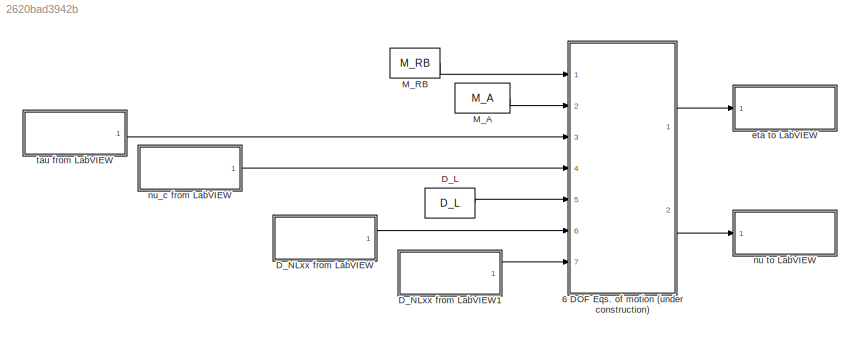
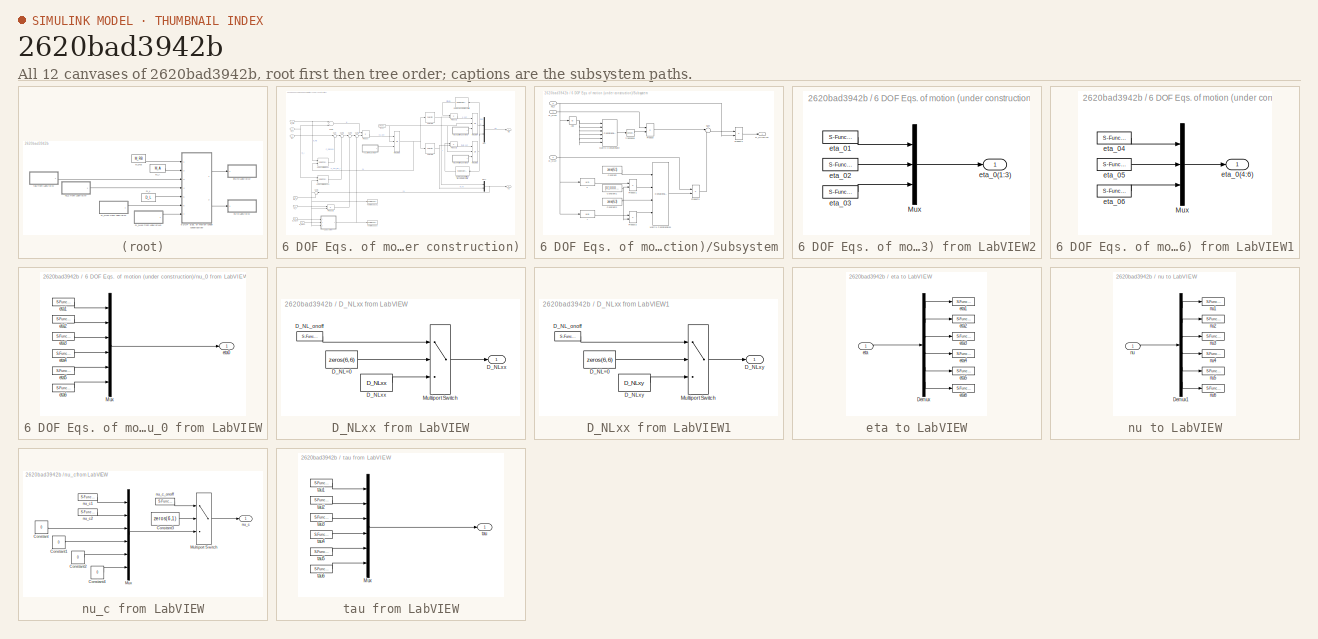
[diagram: thumbnail index - all 12 canvases of the model, root first then tree order]
MODEL slx_2620bad3942b
KIND model
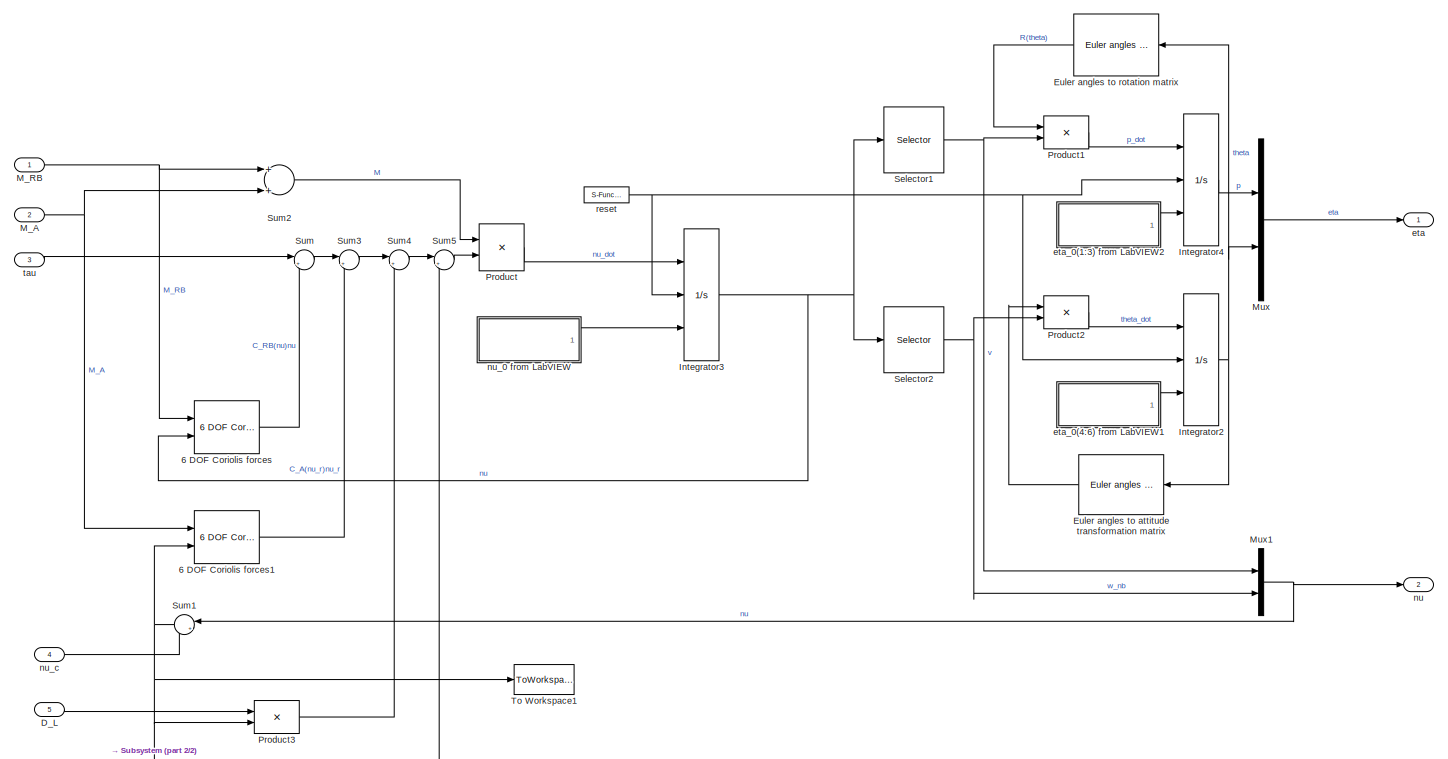
[diagram: 6 DOF Eqs. of motion (under construction) - part 1/2, most of the canvas]
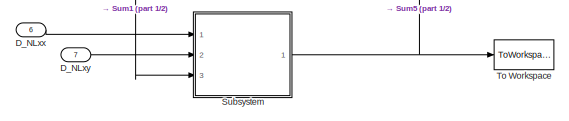
[diagram: 6 DOF Eqs. of motion (under construction) - part 2/2, bottom left region]
BLOCK [SubSystem] 6 DOF Eqs. of motion (under construction)
  Ports = [7, 2]
  RequestExecContextInheritance = off
BLOCK [Reference] 6 DOF Eqs. of motion (under construction)/6 DOF Coriolis forces  REF=marine_gnc/Models/ Kinetics /Support/6 DOF Coriolis forces  (lib defined in mdl_10d96c221ba8, mdl_45f1105420c6)
  Ports = [2, 1]
  SourceBlock = marine_gnc/Models/ Kinetics /Support/6 DOF Coriolis forces
  SourceType = SubSystem
BLOCK [Reference] 6 DOF Eqs. of motion (under construction)/6 DOF Coriolis forces1  REF=marine_gnc/Models/ Kinetics /Support/6 DOF Coriolis forces  (lib defined in mdl_10d96c221ba8, mdl_45f1105420c6)
  Ports = [2, 1]
  SourceBlock = marine_gnc/Models/ Kinetics /Support/6 DOF Coriolis forces
  SourceType = SubSystem
BLOCK [Inport] 6 DOF Eqs. of motion (under construction)/D_L
  IconDisplay = Port number
  Port = 5
BLOCK [Inport] 6 DOF Eqs. of motion (under construction)/D_NLxx
  IconDisplay = Port number
  Port = 6
BLOCK [Inport] 6 DOF Eqs. of motion (under construction)/D_NLxy
  IconDisplay = Port number
  Port = 7
BLOCK [Reference] 6 DOF Eqs. of motion (under construction)/Euler angles to attitude transformation matrix  REF=marine_gnc/Models/ Kinematics/Euler angles to attitude  (lib defined in mdl_10d96c221ba8, mdl_45f1105420c6)
transformation matrix
  Ports = [1, 1]
  SourceBlock = marine_gnc/Models/ Kinematics/Euler angles to attitude\ntransformation matrix
  SourceType = Euler2T
BLOCK [Reference] 6 DOF Eqs. of motion (under construction)/Euler angles to rotation matrix  REF=marine_gnc/Models/ Kinematics/Euler angles to  (lib defined in mdl_10d96c221ba8, mdl_45f1105420c6)
rotation matrix
  Ports = [1, 1]
  SourceBlock = marine_gnc/Models/ Kinematics/Euler angles to\nrotation matrix
  SourceType = Euler2R
BLOCK [Integrator] 6 DOF Eqs. of motion (under construction)/Integrator2
  ExternalReset = level
  InitialConditionSource = external
  Ports = [3, 1]
BLOCK [Integrator] 6 DOF Eqs. of motion (under construction)/Integrator3
  ExternalReset = level
  InitialConditionSource = external
  Ports = [3, 1]
BLOCK [Integrator] 6 DOF Eqs. of motion (under construction)/Integrator4
  ExternalReset = level
  InitialConditionSource = external
  Ports = [3, 1]
BLOCK [Inport] 6 DOF Eqs. of motion (under construction)/M_A
  IconDisplay = Port number
  Port = 2
BLOCK [Inport] 6 DOF Eqs. of motion (under construction)/M_RB
  IconDisplay = Port number
BLOCK [Mux] 6 DOF Eqs. of motion (under construction)/Mux
  DisplayOption = bar
  Inputs = 2
  Ports = [2, 1]
BLOCK [Mux] 6 DOF Eqs. of motion (under construction)/Mux1
  DisplayOption = bar
  Inputs = 2
  Ports = [2, 1]
BLOCK [Product] 6 DOF Eqs. of motion (under construction)/Product
  InputSameDT = off
  Inputs = /*
  Multiplication = Matrix(*)
  Ports = [2, 1]
  RndMeth = Floor
BLOCK [Product] 6 DOF Eqs. of motion (under construction)/Product1
  InputSameDT = off
  Inputs = **
  Multiplication = Matrix(*)
  Ports = [2, 1]
  RndMeth = Floor
BLOCK [Product] 6 DOF Eqs. of motion (under construction)/Product2
  InputSameDT = off
  Inputs = **
  Multiplication = Matrix(*)
  Ports = [2, 1]
  RndMeth = Floor
BLOCK [Product] 6 DOF Eqs. of motion (under construction)/Product3
  InputSameDT = off
  Inputs = **
  Multiplication = Matrix(*)
  Ports = [2, 1]
  RndMeth = Floor
BLOCK [Selector] 6 DOF Eqs. of motion (under construction)/Selector1
  Indices = [1 2 3]
  InputPortWidth = 6
  Ports = [1, 1]
BLOCK [Selector] 6 DOF Eqs. of motion (under construction)/Selector2
  Indices = [4 5 6]
  InputPortWidth = 6
  Ports = [1, 1]
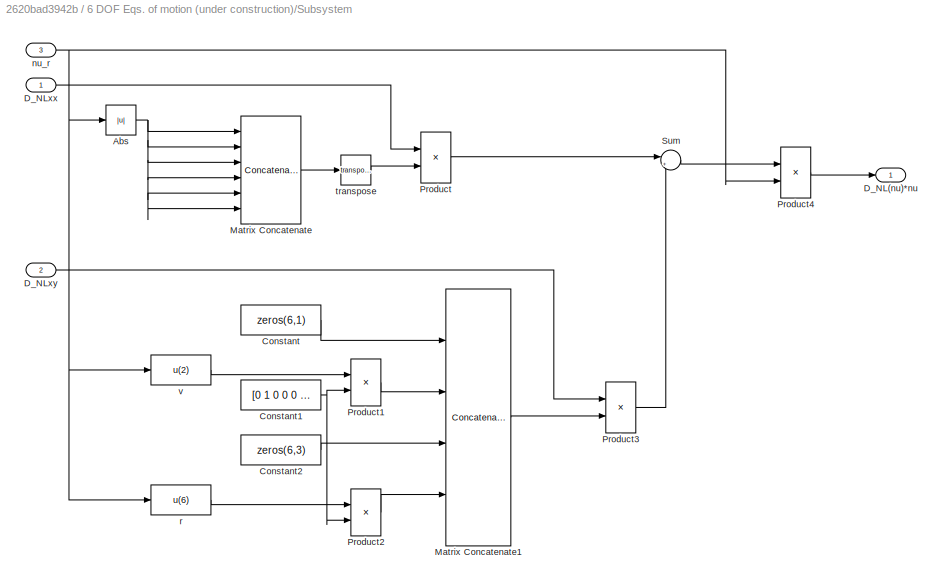
BLOCK [SubSystem] 6 DOF Eqs. of motion (under construction)/Subsystem
  Ports = [3, 1]
  RequestExecContextInheritance = off
BLOCK [Abs] 6 DOF Eqs. of motion (under construction)/Subsystem/Abs
  SaturateOnIntegerOverflow = off
BLOCK [Constant] 6 DOF Eqs. of motion (under construction)/Subsystem/Constant
  Value = zeros(6,1)
BLOCK [Constant] 6 DOF Eqs. of motion (under construction)/Subsystem/Constant1
  Value = [0 1 0 0 0 1]
BLOCK [Constant] 6 DOF Eqs. of motion (under construction)/Subsystem/Constant2
  Value = zeros(6,3)
BLOCK [Outport] 6 DOF Eqs. of motion (under construction)/Subsystem/D_NL(nu)*nu
  IconDisplay = Port number
BLOCK [Inport] 6 DOF Eqs. of motion (under construction)/Subsystem/D_NLxx
  IconDisplay = Port number
BLOCK [Inport] 6 DOF Eqs. of motion (under construction)/Subsystem/D_NLxy
  IconDisplay = Port number
  Port = 2
BLOCK [Concatenate] 6 DOF Eqs. of motion (under construction)/Subsystem/Matrix Concatenate
  ConcatenateDimension = 2
  Mode = Multidimensional array
  NumInputs = 6
  Ports = [6, 1]
BLOCK [Concatenate] 6 DOF Eqs. of motion (under construction)/Subsystem/Matrix Concatenate1
  ConcatenateDimension = 2
  Mode = Multidimensional array
  NumInputs = 4
  Ports = [4, 1]
BLOCK [Product] 6 DOF Eqs. of motion (under construction)/Subsystem/Product
  InputSameDT = off
  OutDataTypeStr = Inherit: Inherit via internal rule
  Ports = [2, 1]
  RndMeth = Floor
  SaturateOnIntegerOverflow = off
BLOCK [Product] 6 DOF Eqs. of motion (under construction)/Subsystem/Product1
  InputSameDT = off
  OutDataTypeStr = Inherit: Inherit via internal rule
  Ports = [2, 1]
  RndMeth = Floor
  SaturateOnIntegerOverflow = off
BLOCK [Product] 6 DOF Eqs. of motion (under construction)/Subsystem/Product2
  InputSameDT = off
  OutDataTypeStr = Inherit: Inherit via internal rule
  Ports = [2, 1]
  RndMeth = Floor
  SaturateOnIntegerOverflow = off
BLOCK [Product] 6 DOF Eqs. of motion (under construction)/Subsystem/Product3
  InputSameDT = off
  OutDataTypeStr = Inherit: Inherit via internal rule
  Ports = [2, 1]
  RndMeth = Floor
  SaturateOnIntegerOverflow = off
BLOCK [Product] 6 DOF Eqs. of motion (under construction)/Subsystem/Product4
  InputSameDT = off
  Multiplication = Matrix(*)
  OutDataTypeStr = Inherit: Inherit via internal rule
  Ports = [2, 1]
  RndMeth = Floor
  SaturateOnIntegerOverflow = off
BLOCK [Sum] 6 DOF Eqs. of motion (under construction)/Subsystem/Sum
  IconShape = round
  InputSameDT = off
  Inputs = |++
  OutDataTypeStr = Inherit: Inherit via internal rule
  Ports = [2, 1]
  SaturateOnIntegerOverflow = off
BLOCK [Inport] 6 DOF Eqs. of motion (under construction)/Subsystem/nu_r
  IconDisplay = Port number
  Port = 3
BLOCK [Fcn] 6 DOF Eqs. of motion (under construction)/Subsystem/r
  Expr = u(6)
BLOCK [Math] 6 DOF Eqs. of motion (under construction)/Subsystem/transpose
  Operator = transpose
  Ports = [1, 1]
BLOCK [Fcn] 6 DOF Eqs. of motion (under construction)/Subsystem/v
  Expr = u(2)
BLOCK [Sum] 6 DOF Eqs. of motion (under construction)/Sum
  IconShape = round
  InputSameDT = off
  Inputs = |+-
  OutDataTypeStr = Inherit: Inherit via internal rule
  Ports = [2, 1]
BLOCK [Sum] 6 DOF Eqs. of motion (under construction)/Sum1
  IconShape = round
  InputSameDT = off
  Inputs = |+-
  OutDataTypeStr = Inherit: Inherit via internal rule
  Ports = [2, 1]
BLOCK [Sum] 6 DOF Eqs. of motion (under construction)/Sum2
  InputSameDT = off
  OutDataTypeStr = Inherit: Inherit via internal rule
  Ports = [2, 1]
BLOCK [Sum] 6 DOF Eqs. of motion (under construction)/Sum3
  IconShape = round
  InputSameDT = off
  Inputs = |+-
  OutDataTypeStr = Inherit: Inherit via internal rule
  Ports = [2, 1]
BLOCK [Sum] 6 DOF Eqs. of motion (under construction)/Sum4
  IconShape = round
  InputSameDT = off
  Inputs = |+-
  OutDataTypeStr = Inherit: Inherit via internal rule
  Ports = [2, 1]
BLOCK [Sum] 6 DOF Eqs. of motion (under construction)/Sum5
  IconShape = round
  InputSameDT = off
  Inputs = |+-
  OutDataTypeStr = Inherit: Inherit via internal rule
  Ports = [2, 1]
BLOCK [ToWorkspace] 6 DOF Eqs. of motion (under construction)/To Workspace
  FixptAsFi = on
  MaxDataPoints = inf
  Ports = [1]
  SampleTime = -1
  Save2DSignal = 3-D array (concatenate along third dimension)
  SaveFormat = Timeseries
  VariableName = simout
BLOCK [ToWorkspace] 6 DOF Eqs. of motion (under construction)/To Workspace1
  FixptAsFi = on
  MaxDataPoints = inf
  Ports = [1]
  SampleTime = -1
  Save2DSignal = 3-D array (concatenate along third dimension)
  SaveFormat = Timeseries
  VariableName = simout2
BLOCK [Outport] 6 DOF Eqs. of motion (under construction)/eta
  IconDisplay = Port number
BLOCK [SubSystem] 6 DOF Eqs. of motion (under construction)/eta_0(1:3) from LabVIEW2
  Ports = [0, 1]
  RequestExecContextInheritance = off
BLOCK [Mux] 6 DOF Eqs. of motion (under construction)/eta_0(1:3) from LabVIEW2/Mux
  DisplayOption = bar
  Inputs = 3
  Ports = [3, 1]
BLOCK [Outport] 6 DOF Eqs. of motion (under construction)/eta_0(1:3) from LabVIEW2/eta_0(1:3)
  IconDisplay = Port number
BLOCK [S-Function] 6 DOF Eqs. of motion (under construction)/eta_0(1:3) from LabVIEW2/eta_01
  CopyFcn = NIVeriStand_MDL_functions('', 'IO_copy');
  DeleteFcn = NIVeriStand_MDL_functions('', 'IO_delete');
  EnableBusSupport = off
  FunctionName = NIVeriStandIO
  MoveFcn = set_param(gcb, 'Mask', 'on');
  Parameters = width dtype portnum stime stype btype
  Ports = [0, 1]
  Priority = 1
BLOCK [S-Function] 6 DOF Eqs. of motion (under construction)/eta_0(1:3) from LabVIEW2/eta_02
  CopyFcn = NIVeriStand_MDL_functions('', 'IO_copy');
  DeleteFcn = NIVeriStand_MDL_functions('', 'IO_delete');
  EnableBusSupport = off
  FunctionName = NIVeriStandIO
  MoveFcn = set_param(gcb, 'Mask', 'on');
  Parameters = width dtype portnum stime stype btype
  Ports = [0, 1]
  Priority = 2
BLOCK [S-Function] 6 DOF Eqs. of motion (under construction)/eta_0(1:3) from LabVIEW2/eta_03
  CopyFcn = NIVeriStand_MDL_functions('', 'IO_copy');
  DeleteFcn = NIVeriStand_MDL_functions('', 'IO_delete');
  EnableBusSupport = off
  FunctionName = NIVeriStandIO
  MoveFcn = set_param(gcb, 'Mask', 'on');
  Parameters = width dtype portnum stime stype btype
  Ports = [0, 1]
  Priority = 3
BLOCK [SubSystem] 6 DOF Eqs. of motion (under construction)/eta_0(4:6) from LabVIEW1
  Ports = [0, 1]
  RequestExecContextInheritance = off
BLOCK [Mux] 6 DOF Eqs. of motion (under construction)/eta_0(4:6) from LabVIEW1/Mux
  DisplayOption = bar
  Inputs = 3
  Ports = [3, 1]
BLOCK [Outport] 6 DOF Eqs. of motion (under construction)/eta_0(4:6) from LabVIEW1/eta_0(4:6)
  IconDisplay = Port number
BLOCK [S-Function] 6 DOF Eqs. of motion (under construction)/eta_0(4:6) from LabVIEW1/eta_04
  CopyFcn = NIVeriStand_MDL_functions('', 'IO_copy');
  DeleteFcn = NIVeriStand_MDL_functions('', 'IO_delete');
  EnableBusSupport = off
  FunctionName = NIVeriStandIO
  MoveFcn = set_param(gcb, 'Mask', 'on');
  Parameters = width dtype portnum stime stype btype
  Ports = [0, 1]
  Priority = 1
BLOCK [S-Function] 6 DOF Eqs. of motion (under construction)/eta_0(4:6) from LabVIEW1/eta_05
  CopyFcn = NIVeriStand_MDL_functions('', 'IO_copy');
  DeleteFcn = NIVeriStand_MDL_functions('', 'IO_delete');
  EnableBusSupport = off
  FunctionName = NIVeriStandIO
  MoveFcn = set_param(gcb, 'Mask', 'on');
  Parameters = width dtype portnum stime stype btype
  Ports = [0, 1]
  Priority = 2
BLOCK [S-Function] 6 DOF Eqs. of motion (under construction)/eta_0(4:6) from LabVIEW1/eta_06
  CopyFcn = NIVeriStand_MDL_functions('', 'IO_copy');
  DeleteFcn = NIVeriStand_MDL_functions('', 'IO_delete');
  EnableBusSupport = off
  FunctionName = NIVeriStandIO
  MoveFcn = set_param(gcb, 'Mask', 'on');
  Parameters = width dtype portnum stime stype btype
  Ports = [0, 1]
  Priority = 3
BLOCK [Outport] 6 DOF Eqs. of motion (under construction)/nu
  IconDisplay = Port number
  Port = 2
BLOCK [SubSystem] 6 DOF Eqs. of motion (under construction)/nu_0 from LabVIEW
  Ports = [0, 1]
  RequestExecContextInheritance = off
BLOCK [Mux] 6 DOF Eqs. of motion (under construction)/nu_0 from LabVIEW/Mux
  DisplayOption = bar
  Inputs = 6
  Ports = [6, 1]
BLOCK [Outport] 6 DOF Eqs. of motion (under construction)/nu_0 from LabVIEW/eta0
  IconDisplay = Port number
BLOCK [S-Function] 6 DOF Eqs. of motion (under construction)/nu_0 from LabVIEW/eta1
  CopyFcn = NIVeriStand_MDL_functions('', 'IO_copy');
  DeleteFcn = NIVeriStand_MDL_functions('', 'IO_delete');
  EnableBusSupport = off
  FunctionName = NIVeriStandIO
  MoveFcn = set_param(gcb, 'Mask', 'on');
  Parameters = width dtype portnum stime stype btype
  Ports = [0, 1]
  Priority = 1
BLOCK [S-Function] 6 DOF Eqs. of motion (under construction)/nu_0 from LabVIEW/eta2
  CopyFcn = NIVeriStand_MDL_functions('', 'IO_copy');
  DeleteFcn = NIVeriStand_MDL_functions('', 'IO_delete');
  EnableBusSupport = off
  FunctionName = NIVeriStandIO
  MoveFcn = set_param(gcb, 'Mask', 'on');
  Parameters = width dtype portnum stime stype btype
  Ports = [0, 1]
  Priority = 2
BLOCK [S-Function] 6 DOF Eqs. of motion (under construction)/nu_0 from LabVIEW/eta3
  CopyFcn = NIVeriStand_MDL_functions('', 'IO_copy');
  DeleteFcn = NIVeriStand_MDL_functions('', 'IO_delete');
  EnableBusSupport = off
  FunctionName = NIVeriStandIO
  MoveFcn = set_param(gcb, 'Mask', 'on');
  Parameters = width dtype portnum stime stype btype
  Ports = [0, 1]
  Priority = 3
BLOCK [S-Function] 6 DOF Eqs. of motion (under construction)/nu_0 from LabVIEW/eta4
  CopyFcn = NIVeriStand_MDL_functions('', 'IO_copy');
  DeleteFcn = NIVeriStand_MDL_functions('', 'IO_delete');
  EnableBusSupport = off
  FunctionName = NIVeriStandIO
  MoveFcn = set_param(gcb, 'Mask', 'on');
  Parameters = width dtype portnum stime stype btype
  Ports = [0, 1]
  Priority = 4
BLOCK [S-Function] 6 DOF Eqs. of motion (under construction)/nu_0 from LabVIEW/eta5
  CopyFcn = NIVeriStand_MDL_functions('', 'IO_copy');
  DeleteFcn = NIVeriStand_MDL_functions('', 'IO_delete');
  EnableBusSupport = off
  FunctionName = NIVeriStandIO
  MoveFcn = set_param(gcb, 'Mask', 'on');
  Parameters = width dtype portnum stime stype btype
  Ports = [0, 1]
  Priority = 5
BLOCK [S-Function] 6 DOF Eqs. of motion (under construction)/nu_0 from LabVIEW/eta6
  CopyFcn = NIVeriStand_MDL_functions('', 'IO_copy');
  DeleteFcn = NIVeriStand_MDL_functions('', 'IO_delete');
  EnableBusSupport = off
  FunctionName = NIVeriStandIO
  MoveFcn = set_param(gcb, 'Mask', 'on');
  Parameters = width dtype portnum stime stype btype
  Ports = [0, 1]
  Priority = 6
BLOCK [Inport] 6 DOF Eqs. of motion (under construction)/nu_c
  IconDisplay = Port number
  Port = 4
BLOCK [S-Function] 6 DOF Eqs. of motion (under construction)/reset
  CopyFcn = NIVeriStand_MDL_functions('', 'IO_copy');
  DeleteFcn = NIVeriStand_MDL_functions('', 'IO_delete');
  EnableBusSupport = off
  FunctionName = NIVeriStandIO
  MoveFcn = set_param(gcb, 'Mask', 'on');
  Parameters = width dtype portnum stime stype btype
  Ports = [0, 1]
  Priority = 1
BLOCK [Inport] 6 DOF Eqs. of motion (under construction)/tau
  IconDisplay = Port number
  Port = 3
BLOCK [Constant] D_L 
  Value = D_L
BLOCK [SubSystem] D_NLxx from LabVIEW
  Ports = [0, 1]
  RequestExecContextInheritance = off
BLOCK [Constant] D_NLxx from LabVIEW/D_NL=0
  Value = zeros(6,6)
BLOCK [S-Function] D_NLxx from LabVIEW/D_NL_onoff
  CopyFcn = NIVeriStand_MDL_functions('', 'IO_copy');
  DeleteFcn = NIVeriStand_MDL_functions('', 'IO_delete');
  EnableBusSupport = off
  FunctionName = NIVeriStandIO
  MoveFcn = set_param(gcb, 'Mask', 'on');
  Parameters = width dtype portnum stime stype btype
  Ports = [0, 1]
  Priority = 1
BLOCK [Outport] D_NLxx from LabVIEW/D_NLxx
  IconDisplay = Port number
BLOCK [Constant] D_NLxx from LabVIEW/D_NLxx 
  Value = D_NLxx
BLOCK [MultiPortSwitch] D_NLxx from LabVIEW/Multiport Switch
  DataPortOrder = Zero-based contiguous
  InputSameDT = off
  Inputs = 2
  Ports = [3, 1]
  SaturateOnIntegerOverflow = off
BLOCK [SubSystem] D_NLxx from LabVIEW1
  Ports = [0, 1]
  RequestExecContextInheritance = off
BLOCK [Constant] D_NLxx from LabVIEW1/D_NL=0
  Value = zeros(6,6)
BLOCK [S-Function] D_NLxx from LabVIEW1/D_NL_onoff
  CopyFcn = NIVeriStand_MDL_functions('', 'IO_copy');
  DeleteFcn = NIVeriStand_MDL_functions('', 'IO_delete');
  EnableBusSupport = off
  FunctionName = NIVeriStandIO
  MoveFcn = set_param(gcb, 'Mask', 'on');
  Parameters = width dtype portnum stime stype btype
  Ports = [0, 1]
  Priority = 1
BLOCK [Outport] D_NLxx from LabVIEW1/D_NLxy
  IconDisplay = Port number
BLOCK [Constant] D_NLxx from LabVIEW1/D_NLxy 
  Value = D_NLxy
BLOCK [MultiPortSwitch] D_NLxx from LabVIEW1/Multiport Switch
  DataPortOrder = Zero-based contiguous
  InputSameDT = off
  Inputs = 2
  Ports = [3, 1]
  SaturateOnIntegerOverflow = off
BLOCK [Constant] M_A
  Value = M_A
BLOCK [Constant] M_RB
  Value = M_RB
BLOCK [SubSystem] eta to LabVIEW
  Ports = [1]
  RequestExecContextInheritance = off
BLOCK [Demux] eta to LabVIEW/Demux
  DisplayOption = bar
  Outputs = 6
  Ports = [1, 6]
BLOCK [Inport] eta to LabVIEW/eta
  IconDisplay = Port number
BLOCK [S-Function] eta to LabVIEW/eta1
  CopyFcn = NIVeriStand_MDL_functions('', 'IO_copy');
  DeleteFcn = NIVeriStand_MDL_functions('', 'IO_delete');
  EnableBusSupport = off
  FunctionName = NIVeriStandIO
  MoveFcn = set_param(gcb, 'Mask', 'on');
  Parameters = width dtype portnum stime stype btype
  Ports = [1]
  Priority = 1
BLOCK [S-Function] eta to LabVIEW/eta2
  CopyFcn = NIVeriStand_MDL_functions('', 'IO_copy');
  DeleteFcn = NIVeriStand_MDL_functions('', 'IO_delete');
  EnableBusSupport = off
  FunctionName = NIVeriStandIO
  MoveFcn = set_param(gcb, 'Mask', 'on');
  Parameters = width dtype portnum stime stype btype
  Ports = [1]
  Priority = 2
BLOCK [S-Function] eta to LabVIEW/eta3
  CopyFcn = NIVeriStand_MDL_functions('', 'IO_copy');
  DeleteFcn = NIVeriStand_MDL_functions('', 'IO_delete');
  EnableBusSupport = off
  FunctionName = NIVeriStandIO
  MoveFcn = set_param(gcb, 'Mask', 'on');
  Parameters = width dtype portnum stime stype btype
  Ports = [1]
  Priority = 3
BLOCK [S-Function] eta to LabVIEW/eta4
  CopyFcn = NIVeriStand_MDL_functions('', 'IO_copy');
  DeleteFcn = NIVeriStand_MDL_functions('', 'IO_delete');
  EnableBusSupport = off
  FunctionName = NIVeriStandIO
  MoveFcn = set_param(gcb, 'Mask', 'on');
  Parameters = width dtype portnum stime stype btype
  Ports = [1]
  Priority = 4
BLOCK [S-Function] eta to LabVIEW/eta5
  CopyFcn = NIVeriStand_MDL_functions('', 'IO_copy');
  DeleteFcn = NIVeriStand_MDL_functions('', 'IO_delete');
  EnableBusSupport = off
  FunctionName = NIVeriStandIO
  MoveFcn = set_param(gcb, 'Mask', 'on');
  Parameters = width dtype portnum stime stype btype
  Ports = [1]
  Priority = 5
BLOCK [S-Function] eta to LabVIEW/eta6
  CopyFcn = NIVeriStand_MDL_functions('', 'IO_copy');
  DeleteFcn = NIVeriStand_MDL_functions('', 'IO_delete');
  EnableBusSupport = off
  FunctionName = NIVeriStandIO
  MoveFcn = set_param(gcb, 'Mask', 'on');
  Parameters = width dtype portnum stime stype btype
  Ports = [1]
  Priority = 6
BLOCK [SubSystem] nu to LabVIEW
  Ports = [1]
  RequestExecContextInheritance = off
BLOCK [Demux] nu to LabVIEW/Demux1
  DisplayOption = bar
  Outputs = 6
  Ports = [1, 6]
BLOCK [Inport] nu to LabVIEW/nu
  IconDisplay = Port number
BLOCK [S-Function] nu to LabVIEW/nu1
  CopyFcn = NIVeriStand_MDL_functions('', 'IO_copy');
  DeleteFcn = NIVeriStand_MDL_functions('', 'IO_delete');
  EnableBusSupport = off
  FunctionName = NIVeriStandIO
  MoveFcn = set_param(gcb, 'Mask', 'on');
  Parameters = width dtype portnum stime stype btype
  Ports = [1]
  Priority = 1
BLOCK [S-Function] nu to LabVIEW/nu2
  CopyFcn = NIVeriStand_MDL_functions('', 'IO_copy');
  DeleteFcn = NIVeriStand_MDL_functions('', 'IO_delete');
  EnableBusSupport = off
  FunctionName = NIVeriStandIO
  MoveFcn = set_param(gcb, 'Mask', 'on');
  Parameters = width dtype portnum stime stype btype
  Ports = [1]
  Priority = 2
BLOCK [S-Function] nu to LabVIEW/nu3
  CopyFcn = NIVeriStand_MDL_functions('', 'IO_copy');
  DeleteFcn = NIVeriStand_MDL_functions('', 'IO_delete');
  EnableBusSupport = off
  FunctionName = NIVeriStandIO
  MoveFcn = set_param(gcb, 'Mask', 'on');
  Parameters = width dtype portnum stime stype btype
  Ports = [1]
  Priority = 3
BLOCK [S-Function] nu to LabVIEW/nu4
  CopyFcn = NIVeriStand_MDL_functions('', 'IO_copy');
  DeleteFcn = NIVeriStand_MDL_functions('', 'IO_delete');
  EnableBusSupport = off
  FunctionName = NIVeriStandIO
  MoveFcn = set_param(gcb, 'Mask', 'on');
  Parameters = width dtype portnum stime stype btype
  Ports = [1]
  Priority = 4
BLOCK [S-Function] nu to LabVIEW/nu5
  CopyFcn = NIVeriStand_MDL_functions('', 'IO_copy');
  DeleteFcn = NIVeriStand_MDL_functions('', 'IO_delete');
  EnableBusSupport = off
  FunctionName = NIVeriStandIO
  MoveFcn = set_param(gcb, 'Mask', 'on');
  Parameters = width dtype portnum stime stype btype
  Ports = [1]
  Priority = 5
BLOCK [S-Function] nu to LabVIEW/nu6
  CopyFcn = NIVeriStand_MDL_functions('', 'IO_copy');
  DeleteFcn = NIVeriStand_MDL_functions('', 'IO_delete');
  EnableBusSupport = off
  FunctionName = NIVeriStandIO
  MoveFcn = set_param(gcb, 'Mask', 'on');
  Parameters = width dtype portnum stime stype btype
  Ports = [1]
  Priority = 6
BLOCK [SubSystem] nu_c from LabVIEW
  Ports = [0, 1]
  RequestExecContextInheritance = off
BLOCK [Constant] nu_c from LabVIEW/Constant
  Value = 0
BLOCK [Constant] nu_c from LabVIEW/Constant1
  Value = 0
BLOCK [Constant] nu_c from LabVIEW/Constant2
  Value = 0
BLOCK [Constant] nu_c from LabVIEW/Constant3
  Value = zeros(6,1)
BLOCK [Constant] nu_c from LabVIEW/Constant4
  Value = 0
BLOCK [MultiPortSwitch] nu_c from LabVIEW/Multiport Switch
  DataPortOrder = Zero-based contiguous
  InputSameDT = off
  Inputs = 2
  Ports = [3, 1]
  SaturateOnIntegerOverflow = off
BLOCK [Mux] nu_c from LabVIEW/Mux
  DisplayOption = bar
  Inputs = 6
  Ports = [6, 1]
BLOCK [Outport] nu_c from LabVIEW/nu_c
  IconDisplay = Port number
BLOCK [S-Function] nu_c from LabVIEW/nu_c1
  CopyFcn = NIVeriStand_MDL_functions('', 'IO_copy');
  DeleteFcn = NIVeriStand_MDL_functions('', 'IO_delete');
  EnableBusSupport = off
  FunctionName = NIVeriStandIO
  MoveFcn = set_param(gcb, 'Mask', 'on');
  Parameters = width dtype portnum stime stype btype
  Ports = [0, 1]
  Priority = 1
BLOCK [S-Function] nu_c from LabVIEW/nu_c2
  CopyFcn = NIVeriStand_MDL_functions('', 'IO_copy');
  DeleteFcn = NIVeriStand_MDL_functions('', 'IO_delete');
  EnableBusSupport = off
  FunctionName = NIVeriStandIO
  MoveFcn = set_param(gcb, 'Mask', 'on');
  Parameters = width dtype portnum stime stype btype
  Ports = [0, 1]
  Priority = 2
BLOCK [S-Function] nu_c from LabVIEW/nu_c_onoff
  CopyFcn = NIVeriStand_MDL_functions('', 'IO_copy');
  DeleteFcn = NIVeriStand_MDL_functions('', 'IO_delete');
  EnableBusSupport = off
  FunctionName = NIVeriStandIO
  MoveFcn = set_param(gcb, 'Mask', 'on');
  Parameters = width dtype portnum stime stype btype
  Ports = [0, 1]
  Priority = 3
BLOCK [SubSystem] tau from LabVIEW
  Ports = [0, 1]
  RequestExecContextInheritance = off
BLOCK [Mux] tau from LabVIEW/Mux
  DisplayOption = bar
  Inputs = 6
  Ports = [6, 1]
BLOCK [Outport] tau from LabVIEW/tau
  IconDisplay = Port number
BLOCK [S-Function] tau from LabVIEW/tau1
  CopyFcn = NIVeriStand_MDL_functions('', 'IO_copy');
  DeleteFcn = NIVeriStand_MDL_functions('', 'IO_delete');
  EnableBusSupport = off
  FunctionName = NIVeriStandIO
  MoveFcn = set_param(gcb, 'Mask', 'on');
  Parameters = width dtype portnum stime stype btype
  Ports = [0, 1]
  Priority = 1
BLOCK [S-Function] tau from LabVIEW/tau2
  CopyFcn = NIVeriStand_MDL_functions('', 'IO_copy');
  DeleteFcn = NIVeriStand_MDL_functions('', 'IO_delete');
  EnableBusSupport = off
  FunctionName = NIVeriStandIO
  MoveFcn = set_param(gcb, 'Mask', 'on');
  Parameters = width dtype portnum stime stype btype
  Ports = [0, 1]
  Priority = 2
BLOCK [S-Function] tau from LabVIEW/tau3
  CopyFcn = NIVeriStand_MDL_functions('', 'IO_copy');
  DeleteFcn = NIVeriStand_MDL_functions('', 'IO_delete');
  EnableBusSupport = off
  FunctionName = NIVeriStandIO
  MoveFcn = set_param(gcb, 'Mask', 'on');
  Parameters = width dtype portnum stime stype btype
  Ports = [0, 1]
  Priority = 3
BLOCK [S-Function] tau from LabVIEW/tau4
  CopyFcn = NIVeriStand_MDL_functions('', 'IO_copy');
  DeleteFcn = NIVeriStand_MDL_functions('', 'IO_delete');
  EnableBusSupport = off
  FunctionName = NIVeriStandIO
  MoveFcn = set_param(gcb, 'Mask', 'on');
  Parameters = width dtype portnum stime stype btype
  Ports = [0, 1]
  Priority = 4
BLOCK [S-Function] tau from LabVIEW/tau5
  CopyFcn = NIVeriStand_MDL_functions('', 'IO_copy');
  DeleteFcn = NIVeriStand_MDL_functions('', 'IO_delete');
  EnableBusSupport = off
  FunctionName = NIVeriStandIO
  MoveFcn = set_param(gcb, 'Mask', 'on');
  Parameters = width dtype portnum stime stype btype
  Ports = [0, 1]
  Priority = 5
BLOCK [S-Function] tau from LabVIEW/tau6
  CopyFcn = NIVeriStand_MDL_functions('', 'IO_copy');
  DeleteFcn = NIVeriStand_MDL_functions('', 'IO_delete');
  EnableBusSupport = off
  FunctionName = NIVeriStandIO
  MoveFcn = set_param(gcb, 'Mask', 'on');
  Parameters = width dtype portnum stime stype btype
  Ports = [0, 1]
  Priority = 6
LINE 6 DOF Eqs. of motion (under construction)/6 DOF Coriolis forces1:1 -> 6 DOF Eqs. of motion (under construction)/Sum3:2
LINE 6 DOF Eqs. of motion (under construction)/6 DOF Coriolis forces:1 -> 6 DOF Eqs. of motion (under construction)/Sum:2
LINE 6 DOF Eqs. of motion (under construction)/D_L:1 -> 6 DOF Eqs. of motion (under construction)/Product3:1
LINE 6 DOF Eqs. of motion (under construction)/D_NLxx:1 -> 6 DOF Eqs. of motion (under construction)/Subsystem:1
LINE 6 DOF Eqs. of motion (under construction)/D_NLxy:1 -> 6 DOF Eqs. of motion (under construction)/Subsystem:2
LINE 6 DOF Eqs. of motion (under construction)/Euler angles to attitude transformation matrix:1 -> 6 DOF Eqs. of motion (under construction)/Product2:1
LINE 6 DOF Eqs. of motion (under construction)/Euler angles to rotation matrix:1 -> 6 DOF Eqs. of motion (under construction)/Product1:1
NET 6 DOF Eqs. of motion (under construction)/Integrator2:1 -> 6 DOF Eqs. of motion (under construction)/Euler angles to attitude transformation matrix:1, 6 DOF Eqs. of motion (under construction)/Euler angles to rotation matrix:1, 6 DOF Eqs. of motion (under construction)/Mux:2
NET 6 DOF Eqs. of motion (under construction)/Integrator3:1 -> 6 DOF Eqs. of motion (under construction)/6 DOF Coriolis forces:2, 6 DOF Eqs. of motion (under construction)/Selector1:1, 6 DOF Eqs. of motion (under construction)/Selector2:1
LINE 6 DOF Eqs. of motion (under construction)/Integrator4:1 -> 6 DOF Eqs. of motion (under construction)/Mux:1
NET 6 DOF Eqs. of motion (under construction)/M_A:1 -> 6 DOF Eqs. of motion (under construction)/6 DOF Coriolis forces1:1, 6 DOF Eqs. of motion (under construction)/Sum2:2
NET 6 DOF Eqs. of motion (under construction)/M_RB:1 -> 6 DOF Eqs. of motion (under construction)/6 DOF Coriolis forces:1, 6 DOF Eqs. of motion (under construction)/Sum2:1
NET 6 DOF Eqs. of motion (under construction)/Mux1:1 -> 6 DOF Eqs. of motion (under construction)/Sum1:1, 6 DOF Eqs. of motion (under construction)/nu:1
LINE 6 DOF Eqs. of motion (under construction)/Mux:1 -> 6 DOF Eqs. of motion (under construction)/eta:1
LINE 6 DOF Eqs. of motion (under construction)/Product1:1 -> 6 DOF Eqs. of motion (under construction)/Integrator4:1
LINE 6 DOF Eqs. of motion (under construction)/Product2:1 -> 6 DOF Eqs. of motion (under construction)/Integrator2:1
LINE 6 DOF Eqs. of motion (under construction)/Product3:1 -> 6 DOF Eqs. of motion (under construction)/Sum4:2
LINE 6 DOF Eqs. of motion (under construction)/Product:1 -> 6 DOF Eqs. of motion (under construction)/Integrator3:1
NET 6 DOF Eqs. of motion (under construction)/Selector1:1 -> 6 DOF Eqs. of motion (under construction)/Mux1:1, 6 DOF Eqs. of motion (under construction)/Product1:2
NET 6 DOF Eqs. of motion (under construction)/Selector2:1 -> 6 DOF Eqs. of motion (under construction)/Mux1:2, 6 DOF Eqs. of motion (under construction)/Product2:2
NET 6 DOF Eqs. of motion (under construction)/Subsystem/Abs:1 -> 6 DOF Eqs. of motion (under construction)/Subsystem/Matrix Concatenate:1, 6 DOF Eqs. of motion (under construction)/Subsystem/Matrix Concatenate:2, 6 DOF Eqs. of motion (under construction)/Subsystem/Matrix Concatenate:3, 6 DOF Eqs. of motion (under construction)/Subsystem/Matrix Concatenate:4, 6 DOF Eqs. of motion (under construction)/Subsystem/Matrix Concatenate:5, 6 DOF Eqs. of motion (under construction)/Subsystem/Matrix Concatenate:6
NET 6 DOF Eqs. of motion (under construction)/Subsystem/Constant1:1 -> 6 DOF Eqs. of motion (under construction)/Subsystem/Product1:2, 6 DOF Eqs. of motion (under construction)/Subsystem/Product2:2
LINE 6 DOF Eqs. of motion (under construction)/Subsystem/Constant2:1 -> 6 DOF Eqs. of motion (under construction)/Subsystem/Matrix Concatenate1:3
LINE 6 DOF Eqs. of motion (under construction)/Subsystem/Constant:1 -> 6 DOF Eqs. of motion (under construction)/Subsystem/Matrix Concatenate1:1
LINE 6 DOF Eqs. of motion (under construction)/Subsystem/D_NLxx:1 -> 6 DOF Eqs. of motion (under construction)/Subsystem/Product:1
LINE 6 DOF Eqs. of motion (under construction)/Subsystem/D_NLxy:1 -> 6 DOF Eqs. of motion (under construction)/Subsystem/Product3:1
LINE 6 DOF Eqs. of motion (under construction)/Subsystem/Matrix Concatenate1:1 -> 6 DOF Eqs. of motion (under construction)/Subsystem/Product3:2
LINE 6 DOF Eqs. of motion (under construction)/Subsystem/Matrix Concatenate:1 -> 6 DOF Eqs. of motion (under construction)/Subsystem/transpose:1
LINE 6 DOF Eqs. of motion (under construction)/Subsystem/Product1:1 -> 6 DOF Eqs. of motion (under construction)/Subsystem/Matrix Concatenate1:2
LINE 6 DOF Eqs. of motion (under construction)/Subsystem/Product2:1 -> 6 DOF Eqs. of motion (under construction)/Subsystem/Matrix Concatenate1:4
LINE 6 DOF Eqs. of motion (under construction)/Subsystem/Product3:1 -> 6 DOF Eqs. of motion (under construction)/Subsystem/Sum:2
LINE 6 DOF Eqs. of motion (under construction)/Subsystem/Product4:1 -> 6 DOF Eqs. of motion (under construction)/Subsystem/D_NL(nu)*nu:1
LINE 6 DOF Eqs. of motion (under construction)/Subsystem/Product:1 -> 6 DOF Eqs. of motion (under construction)/Subsystem/Sum:1
LINE 6 DOF Eqs. of motion (under construction)/Subsystem/Sum:1 -> 6 DOF Eqs. of motion (under construction)/Subsystem/Product4:1
NET 6 DOF Eqs. of motion (under construction)/Subsystem/nu_r:1 -> 6 DOF Eqs. of motion (under construction)/Subsystem/Abs:1, 6 DOF Eqs. of motion (under construction)/Subsystem/Product4:2, 6 DOF Eqs. of motion (under construction)/Subsystem/r:1, 6 DOF Eqs. of motion (under construction)/Subsystem/v:1
LINE 6 DOF Eqs. of motion (under construction)/Subsystem/r:1 -> 6 DOF Eqs. of motion (under construction)/Subsystem/Product2:1
LINE 6 DOF Eqs. of motion (under construction)/Subsystem/transpose:1 -> 6 DOF Eqs. of motion (under construction)/Subsystem/Product:2
LINE 6 DOF Eqs. of motion (under construction)/Subsystem/v:1 -> 6 DOF Eqs. of motion (under construction)/Subsystem/Product1:1
NET 6 DOF Eqs. of motion (under construction)/Subsystem:1 -> 6 DOF Eqs. of motion (under construction)/Sum5:2, 6 DOF Eqs. of motion (under construction)/To Workspace:1
NET 6 DOF Eqs. of motion (under construction)/Sum1:1 -> 6 DOF Eqs. of motion (under construction)/6 DOF Coriolis forces1:2, 6 DOF Eqs. of motion (under construction)/Product3:2, 6 DOF Eqs. of motion (under construction)/Subsystem:3, 6 DOF Eqs. of motion (under construction)/To Workspace1:1
LINE 6 DOF Eqs. of motion (under construction)/Sum2:1 -> 6 DOF Eqs. of motion (under construction)/Product:1
LINE 6 DOF Eqs. of motion (under construction)/Sum3:1 -> 6 DOF Eqs. of motion (under construction)/Sum4:1
LINE 6 DOF Eqs. of motion (under construction)/Sum4:1 -> 6 DOF Eqs. of motion (under construction)/Sum5:1
LINE 6 DOF Eqs. of motion (under construction)/Sum5:1 -> 6 DOF Eqs. of motion (under construction)/Product:2
LINE 6 DOF Eqs. of motion (under construction)/Sum:1 -> 6 DOF Eqs. of motion (under construction)/Sum3:1
LINE 6 DOF Eqs. of motion (under construction)/eta_0(1:3) from LabVIEW2/Mux:1 -> 6 DOF Eqs. of motion (under construction)/eta_0(1:3) from LabVIEW2/eta_0(1:3):1
LINE 6 DOF Eqs. of motion (under construction)/eta_0(1:3) from LabVIEW2/eta_01:1 -> 6 DOF Eqs. of motion (under construction)/eta_0(1:3) from LabVIEW2/Mux:1
LINE 6 DOF Eqs. of motion (under construction)/eta_0(1:3) from LabVIEW2/eta_02:1 -> 6 DOF Eqs. of motion (under construction)/eta_0(1:3) from LabVIEW2/Mux:2
LINE 6 DOF Eqs. of motion (under construction)/eta_0(1:3) from LabVIEW2/eta_03:1 -> 6 DOF Eqs. of motion (under construction)/eta_0(1:3) from LabVIEW2/Mux:3
LINE 6 DOF Eqs. of motion (under construction)/eta_0(1:3) from LabVIEW2:1 -> 6 DOF Eqs. of motion (under construction)/Integrator4:3
LINE 6 DOF Eqs. of motion (under construction)/eta_0(4:6) from LabVIEW1/Mux:1 -> 6 DOF Eqs. of motion (under construction)/eta_0(4:6) from LabVIEW1/eta_0(4:6):1
LINE 6 DOF Eqs. of motion (under construction)/eta_0(4:6) from LabVIEW1/eta_04:1 -> 6 DOF Eqs. of motion (under construction)/eta_0(4:6) from LabVIEW1/Mux:1
LINE 6 DOF Eqs. of motion (under construction)/eta_0(4:6) from LabVIEW1/eta_05:1 -> 6 DOF Eqs. of motion (under construction)/eta_0(4:6) from LabVIEW1/Mux:2
LINE 6 DOF Eqs. of motion (under construction)/eta_0(4:6) from LabVIEW1/eta_06:1 -> 6 DOF Eqs. of motion (under construction)/eta_0(4:6) from LabVIEW1/Mux:3
LINE 6 DOF Eqs. of motion (under construction)/eta_0(4:6) from LabVIEW1:1 -> 6 DOF Eqs. of motion (under construction)/Integrator2:3
LINE 6 DOF Eqs. of motion (under construction)/nu_0 from LabVIEW/Mux:1 -> 6 DOF Eqs. of motion (under construction)/nu_0 from LabVIEW/eta0:1
LINE 6 DOF Eqs. of motion (under construction)/nu_0 from LabVIEW/eta1:1 -> 6 DOF Eqs. of motion (under construction)/nu_0 from LabVIEW/Mux:1
LINE 6 DOF Eqs. of motion (under construction)/nu_0 from LabVIEW/eta2:1 -> 6 DOF Eqs. of motion (under construction)/nu_0 from LabVIEW/Mux:2
LINE 6 DOF Eqs. of motion (under construction)/nu_0 from LabVIEW/eta3:1 -> 6 DOF Eqs. of motion (under construction)/nu_0 from LabVIEW/Mux:3
LINE 6 DOF Eqs. of motion (under construction)/nu_0 from LabVIEW/eta4:1 -> 6 DOF Eqs. of motion (under construction)/nu_0 from LabVIEW/Mux:4
LINE 6 DOF Eqs. of motion (under construction)/nu_0 from LabVIEW/eta5:1 -> 6 DOF Eqs. of motion (under construction)/nu_0 from LabVIEW/Mux:5
LINE 6 DOF Eqs. of motion (under construction)/nu_0 from LabVIEW/eta6:1 -> 6 DOF Eqs. of motion (under construction)/nu_0 from LabVIEW/Mux:6
LINE 6 DOF Eqs. of motion (under construction)/nu_0 from LabVIEW:1 -> 6 DOF Eqs. of motion (under construction)/Integrator3:3
LINE 6 DOF Eqs. of motion (under construction)/nu_c:1 -> 6 DOF Eqs. of motion (under construction)/Sum1:2
NET 6 DOF Eqs. of motion (under construction)/reset:1 -> 6 DOF Eqs. of motion (under construction)/Integrator2:2, 6 DOF Eqs. of motion (under construction)/Integrator3:2, 6 DOF Eqs. of motion (under construction)/Integrator4:2
LINE 6 DOF Eqs. of motion (under construction)/tau:1 -> 6 DOF Eqs. of motion (under construction)/Sum:1
LINE 6 DOF Eqs. of motion (under construction):1 -> eta to LabVIEW:1
LINE 6 DOF Eqs. of motion (under construction):2 -> nu to LabVIEW:1
LINE D_L :1 -> 6 DOF Eqs. of motion (under construction):5
LINE D_NLxx from LabVIEW/D_NL=0:1 -> D_NLxx from LabVIEW/Multiport Switch:2
LINE D_NLxx from LabVIEW/D_NL_onoff:1 -> D_NLxx from LabVIEW/Multiport Switch:1
LINE D_NLxx from LabVIEW/D_NLxx :1 -> D_NLxx from LabVIEW/Multiport Switch:3
LINE D_NLxx from LabVIEW/Multiport Switch:1 -> D_NLxx from LabVIEW/D_NLxx:1
LINE D_NLxx from LabVIEW1/D_NL=0:1 -> D_NLxx from LabVIEW1/Multiport Switch:2
LINE D_NLxx from LabVIEW1/D_NL_onoff:1 -> D_NLxx from LabVIEW1/Multiport Switch:1
LINE D_NLxx from LabVIEW1/D_NLxy :1 -> D_NLxx from LabVIEW1/Multiport Switch:3
LINE D_NLxx from LabVIEW1/Multiport Switch:1 -> D_NLxx from LabVIEW1/D_NLxy:1
LINE D_NLxx from LabVIEW1:1 -> 6 DOF Eqs. of motion (under construction):7
LINE D_NLxx from LabVIEW:1 -> 6 DOF Eqs. of motion (under construction):6
LINE M_A:1 -> 6 DOF Eqs. of motion (under construction):2
LINE M_RB:1 -> 6 DOF Eqs. of motion (under construction):1
LINE eta to LabVIEW/Demux:1 -> eta to LabVIEW/eta1:1
LINE eta to LabVIEW/Demux:2 -> eta to LabVIEW/eta2:1
LINE eta to LabVIEW/Demux:3 -> eta to LabVIEW/eta3:1
LINE eta to LabVIEW/Demux:4 -> eta to LabVIEW/eta4:1
LINE eta to LabVIEW/Demux:5 -> eta to LabVIEW/eta5:1
LINE eta to LabVIEW/Demux:6 -> eta to LabVIEW/eta6:1
LINE eta to LabVIEW/eta:1 -> eta to LabVIEW/Demux:1
LINE nu to LabVIEW/Demux1:1 -> nu to LabVIEW/nu1:1
LINE nu to LabVIEW/Demux1:2 -> nu to LabVIEW/nu2:1
LINE nu to LabVIEW/Demux1:3 -> nu to LabVIEW/nu3:1
LINE nu to LabVIEW/Demux1:4 -> nu to LabVIEW/nu4:1
LINE nu to LabVIEW/Demux1:5 -> nu to LabVIEW/nu5:1
LINE nu to LabVIEW/Demux1:6 -> nu to LabVIEW/nu6:1
LINE nu to LabVIEW/nu:1 -> nu to LabVIEW/Demux1:1
LINE nu_c from LabVIEW/Constant1:1 -> nu_c from LabVIEW/Mux:4
LINE nu_c from LabVIEW/Constant2:1 -> nu_c from LabVIEW/Mux:5
LINE nu_c from LabVIEW/Constant3:1 -> nu_c from LabVIEW/Multiport Switch:2
LINE nu_c from LabVIEW/Constant4:1 -> nu_c from LabVIEW/Mux:6
LINE nu_c from LabVIEW/Constant:1 -> nu_c from LabVIEW/Mux:3
LINE nu_c from LabVIEW/Multiport Switch:1 -> nu_c from LabVIEW/nu_c:1
LINE nu_c from LabVIEW/Mux:1 -> nu_c from LabVIEW/Multiport Switch:3
LINE nu_c from LabVIEW/nu_c1:1 -> nu_c from LabVIEW/Mux:1
LINE nu_c from LabVIEW/nu_c2:1 -> nu_c from LabVIEW/Mux:2
LINE nu_c from LabVIEW/nu_c_onoff:1 -> nu_c from LabVIEW/Multiport Switch:1
LINE nu_c from LabVIEW:1 -> 6 DOF Eqs. of motion (under construction):4
LINE tau from LabVIEW/Mux:1 -> tau from LabVIEW/tau:1
LINE tau from LabVIEW/tau1:1 -> tau from LabVIEW/Mux:1
LINE tau from LabVIEW/tau2:1 -> tau from LabVIEW/Mux:2
LINE tau from LabVIEW/tau3:1 -> tau from LabVIEW/Mux:3
LINE tau from LabVIEW/tau4:1 -> tau from LabVIEW/Mux:4
LINE tau from LabVIEW/tau5:1 -> tau from LabVIEW/Mux:5
LINE tau from LabVIEW/tau6:1 -> tau from LabVIEW/Mux:6
LINE tau from LabVIEW:1 -> 6 DOF Eqs. of motion (under construction):3
note: NET lines group one-source signal fan-out (src -> all destinations, sorted); 1:1 wires keep LINE
